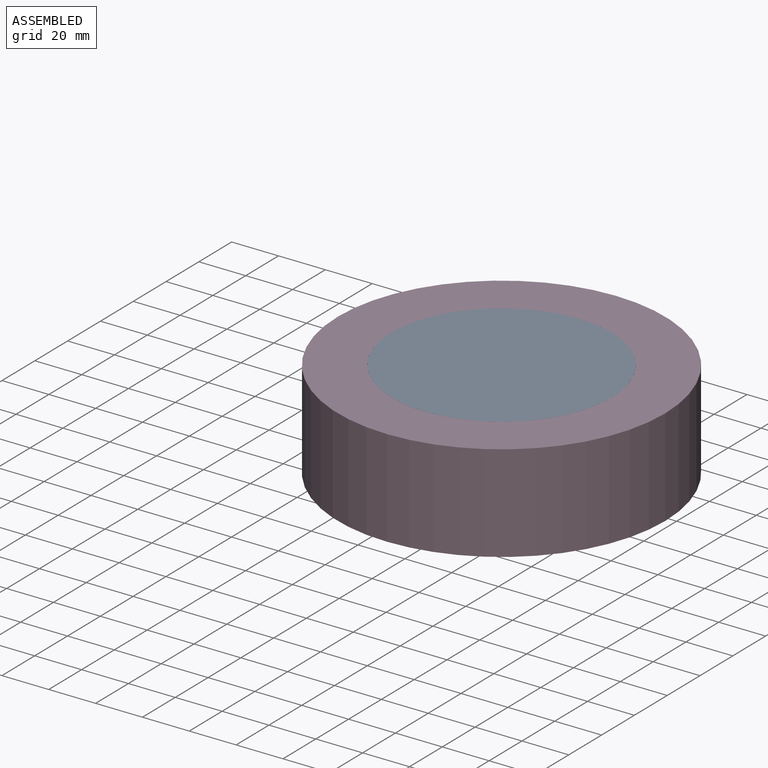
[diagram: assembled view]
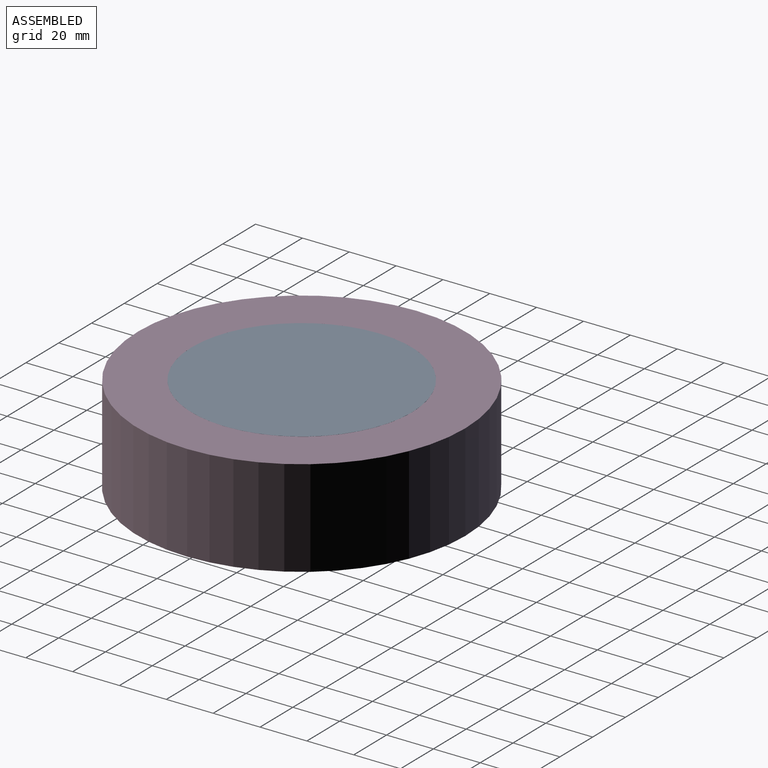
[diagram: assembled view, second angle]
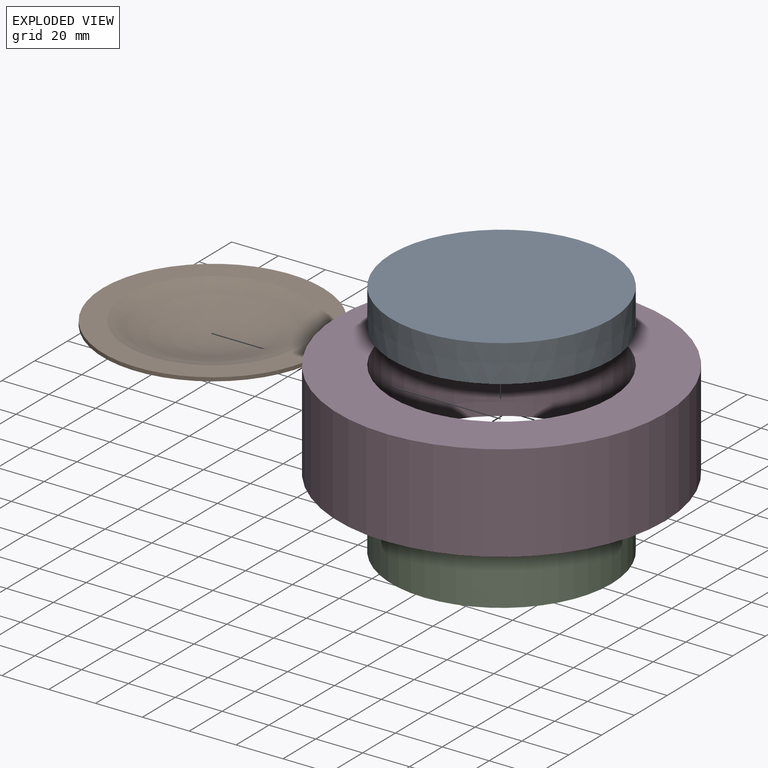
[diagram: exploded view]
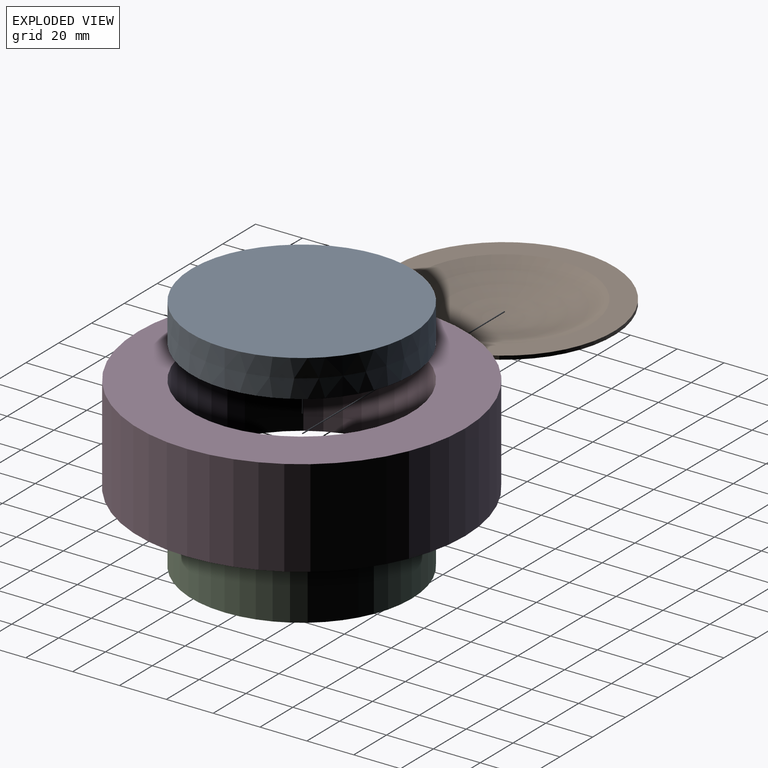
[diagram: exploded view, second angle]
ASSEMBLY  parts=4 mates=2
PART A: 4 faces, bbox 94x94x23.4 mm
  f0: sphere r=93.98mm, area 4488.6mm2, adj f1
  f1: cone r=47.01mm half-angle=89.9deg, axis (0,0,1), area 2634.2mm2, adj f0,f2
  f2: cone r=46.99mm half-angle=0.1deg, axis (0,0,-1), area 4672.8mm2, adj f1,f3
  f3: cone r=0mm half-angle=89.9deg, axis (0,0,1), area 6936.8mm2, adj f2
PART B: 5 faces, bbox 94x94x13.1 mm
  f0: sphere r=93.98mm, area 6786.3mm2, adj f4
  f1: sphere r=93.98mm, area 4476.6mm2, adj f2
  f2: plane 93.98x93.98mm, normal (0,0,-1), area 2640.8mm2, adj f1,f3
  f3: cylinder r=46.99mm len=93.98mm, axis (0,0,1), area 465mm2, adj f2,f4
  f4: plane 93.98x93.98mm, normal (0,0,1), area 565.4mm2, adj f0,f3
PART C: 4 faces, bbox 94x94x24.1 mm
  f0: plane 93.98x93.98mm, normal (0,0,-1), area 6936.8mm2, adj f1
  f1: cylinder r=46.99mm len=93.98mm, axis (0,0,-1), area 7127.8mm2, adj f0,f2
  f2: plane 93.98x93.98mm, normal (0,0,1), area 565.4mm2, adj f1,f3
  f3: sphere r=93.98mm, area 6786.3mm2, adj f2
PART D: 4 faces, bbox 139.7x139.7x41.5 mm
  f0: cylinder r=46.99mm len=93.98mm, axis (0,0,-1), area 12261.3mm2, adj f2,f3
  f1: cylinder r=69.85mm len=139.7mm, axis (0,0,-1), area 18226.3mm2, adj f2,f3
  f2: plane 139.7x139.7mm, normal (0,0,1), area 8391.1mm2, adj f0,f1
  f3: plane 139.7x139.7mm, normal (0,0,-1), area 8391.1mm2, adj f0,f1
PLACE A t=(7.8,-20.76,-30.88)mm
PLACE B rot(axis=(0,1,0),180deg) t=(7.8,-20.76,-23.27)mm
PLACE C t=(7.8,-20.76,-24.87)mm
PLACE D t=(7.8,-20.76,-49)mm
MATE fastened D.f1 <-> A.f1  axis (0,0,1) through (7.8,-20.76,-7.47)mm
MATE fastened C.f1 <-> D.f1  axis (0,0,-1) through (7.8,-20.76,-49)mm
